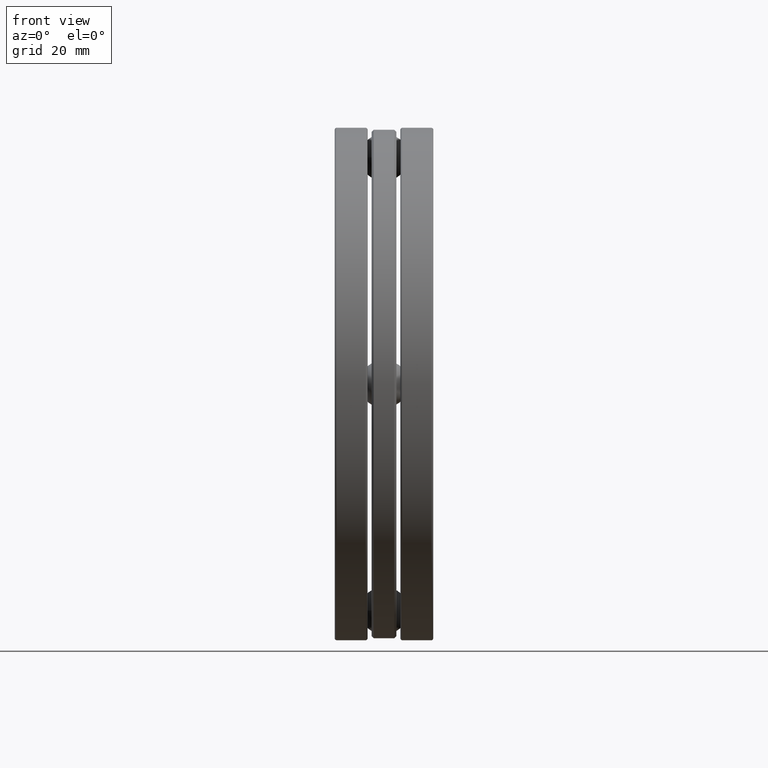
[diagram: clean part render]
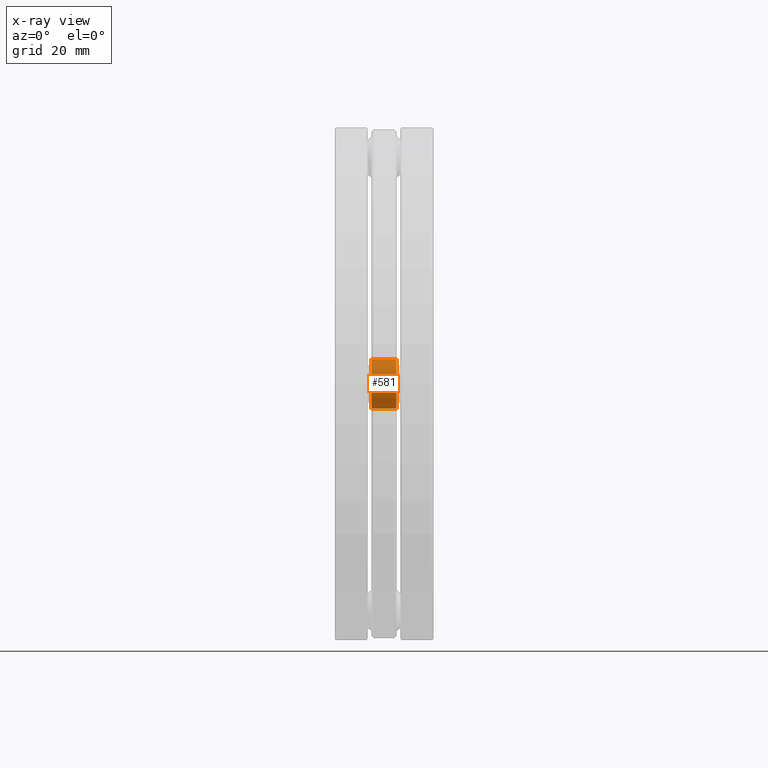
[diagram: x-ray — body ghosted, one internal face saturated and labeled with its STEP entity id]
A machine part, front view, then the same camera in x-ray: the body is ghosted and one INTERNAL B-rep face — a face not visible from any outside direction — is saturated and labeled: STEP entity #581.
In plain terms, the highlighted cylindrical surface (bore or boss wall) has radius 6.2738 mm, axis along (1, -0, -0).
Its self-contained STEP definition (entity closure, byte-faithful):
#2 = CIRCLE ( 'NONE', #18, 0.2470000000000005000 ) ;
#6 = CARTESIAN_POINT ( 'NONE',  ( -0.1229999999999999600, 2.263749999999999900, -0.2470000000000005000 ) ) ;
#18 = AXIS2_PLACEMENT_3D ( 'NONE', #507, #263, #175 ) ;
#26 = CARTESIAN_POINT ( 'NONE',  ( 0.1230000000000000000, 2.263749999999999900, 0.0000000000000000000 ) ) ;
#31 = CARTESIAN_POINT ( 'NONE',  ( -0.4920393700787400500, 2.263749999999999900, 0.0000000000000000000 ) ) ;
#61 = CARTESIAN_POINT ( 'NONE',  ( 0.1230000000000000000, 2.263749999999999900, -0.2470000000000005000 ) ) ;
#144 = AXIS2_PLACEMENT_3D ( 'NONE', #26, #335, #786 ) ;
#175 = DIRECTION ( 'NONE',  ( 0.0000000000000000000, 0.0000000000000000000, -1.000000000000000000 ) ) ;
#176 = ORIENTED_EDGE ( 'NONE', *, *, #394, .T. ) ;
#177 = ORIENTED_EDGE ( 'NONE', *, *, #433, .T. ) ;
#199 = FACE_OUTER_BOUND ( 'NONE', #661, .T. ) ;
#263 = DIRECTION ( 'NONE',  ( -1.000000000000000000, -0.0000000000000000000, -0.0000000000000000000 ) ) ;
#280 = CIRCLE ( 'NONE', #144, 0.2470000000000005000 ) ;
#335 = DIRECTION ( 'NONE',  ( 1.000000000000000000, -0.0000000000000000000, 0.0000000000000000000 ) ) ;
#337 = EDGE_LOOP ( 'NONE', ( #177 ) ) ;
#394 = EDGE_CURVE ( 'NONE', #403, #403, #2, .T. ) ;
#403 = VERTEX_POINT ( 'NONE', #6 ) ;
#425 = VERTEX_POINT ( 'NONE', #61 ) ;
#433 = EDGE_CURVE ( 'NONE', #425, #425, #280, .T. ) ;
#463 = DIRECTION ( 'NONE',  ( 0.0000000000000000000, 0.0000000000000000000, -1.000000000000000000 ) ) ;
#507 = CARTESIAN_POINT ( 'NONE',  ( -0.1229999999999999600, 2.263749999999999900, 0.0000000000000000000 ) ) ;
#563 = AXIS2_PLACEMENT_3D ( 'NONE', #31, #659, #463 ) ;
#581 = ADVANCED_FACE ( 'NONE', ( #651, #199 ), #822, .F. ) ;
#651 = FACE_OUTER_BOUND ( 'NONE', #337, .T. ) ;
#659 = DIRECTION ( 'NONE',  ( 1.000000000000000000, -0.0000000000000000000, -0.0000000000000000000 ) ) ;
#661 = EDGE_LOOP ( 'NONE', ( #176 ) ) ;
#786 = DIRECTION ( 'NONE',  ( 0.0000000000000000000, 0.0000000000000000000, -1.000000000000000000 ) ) ;
#822 = CYLINDRICAL_SURFACE ( 'NONE', #563, 0.2470000000000005000 ) ;